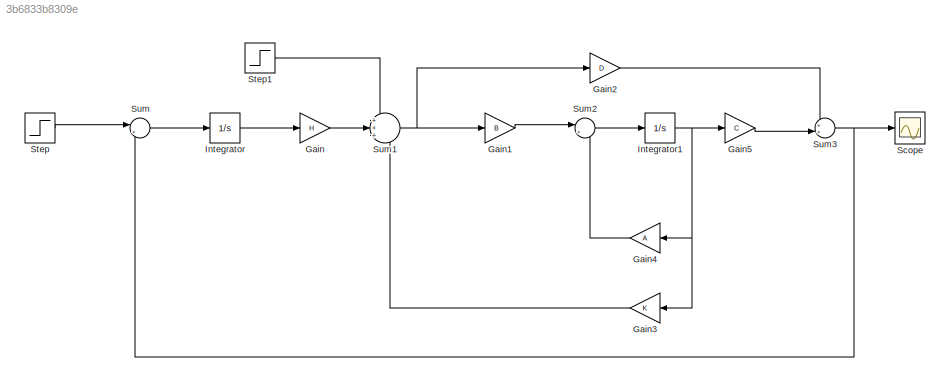
MODEL slx_3b6833b8309e
KIND model
CONFIG AbsTol = auto
CONFIG EnableMultiTasking = off
CONFIG FixedStep = auto
CONFIG MaxStep = auto
CONFIG MinStep = auto
CONFIG RelTol = 1e-3
CONFIG SampleTimeConstraint = Unconstrained
CONFIG SolverName = VariableStepAuto
CONFIG StartTime = 0.0
CONFIG StopTime = 40
BLOCK [Gain] Gain
  Gain = H
  Multiplication = Matrix(K*u)
BLOCK [Gain] Gain1
  Gain = B
  Multiplication = Matrix(K*u)
BLOCK [Gain] Gain2
  Gain = D
  Multiplication = Matrix(K*u)
BLOCK [Gain] Gain3
  Gain = K
  Multiplication = Matrix(K*u)
  NameLocation = top
BLOCK [Gain] Gain4
  Gain = A
  Multiplication = Matrix(K*u)
  NameLocation = top
BLOCK [Gain] Gain5
  Gain = C
  Multiplication = Matrix(K*u)
BLOCK [Integrator] Integrator
BLOCK [Integrator] Integrator1
BLOCK [Scope] Scope
  Floating = off
  NumInputPorts = 1
  ScopeSpecificationString = Simulink.scopes.TimeScopeBlockCfg('CurrentConfiguration', extmgr.ConfigurationSet(extmgr.Configuration('Core','General UI',true),extmgr.Configuration('Core','Source UI',true),extmgr.Configuration('Sources','WiredSimulink',true),extmgr.Configuration('Visuals','Time Domain',true,'SerializedDisplays',{struct('MinYLimReal','-0.17179','MaxYLimReal','1.5461','YLabelReal','','MinYLimMag','0.00000','MaxYL...<+1374ch>
BLOCK [Step] Step
  SampleTime = 0
BLOCK [Step] Step1
  SampleTime = 0
  Time = 20
BLOCK [Sum] Sum
  Inputs = |+-
BLOCK [Sum] Sum1
  Inputs = +++
BLOCK [Sum] Sum2
  Inputs = |++
BLOCK [Sum] Sum3
  Inputs = ++|
LINE Gain1:1 -> Sum2:1
LINE Gain2:1 -> Sum3:1
LINE Gain3:1 -> Sum1:3
LINE Gain4:1 -> Sum2:2
LINE Gain5:1 -> Sum3:2
LINE Gain:1 -> Sum1:2
NET Integrator1:1 -> Gain3:1, Gain4:1, Gain5:1
LINE Integrator:1 -> Gain:1
LINE Step1:1 -> Sum1:1
LINE Step:1 -> Sum:1
NET Sum1:1 -> Gain1:1, Gain2:1
LINE Sum2:1 -> Integrator1:1
NET Sum3:1 -> Scope:1, Sum:2
LINE Sum:1 -> Integrator:1
note: NET lines group one-source signal fan-out (src -> all destinations, sorted); 1:1 wires keep LINE
